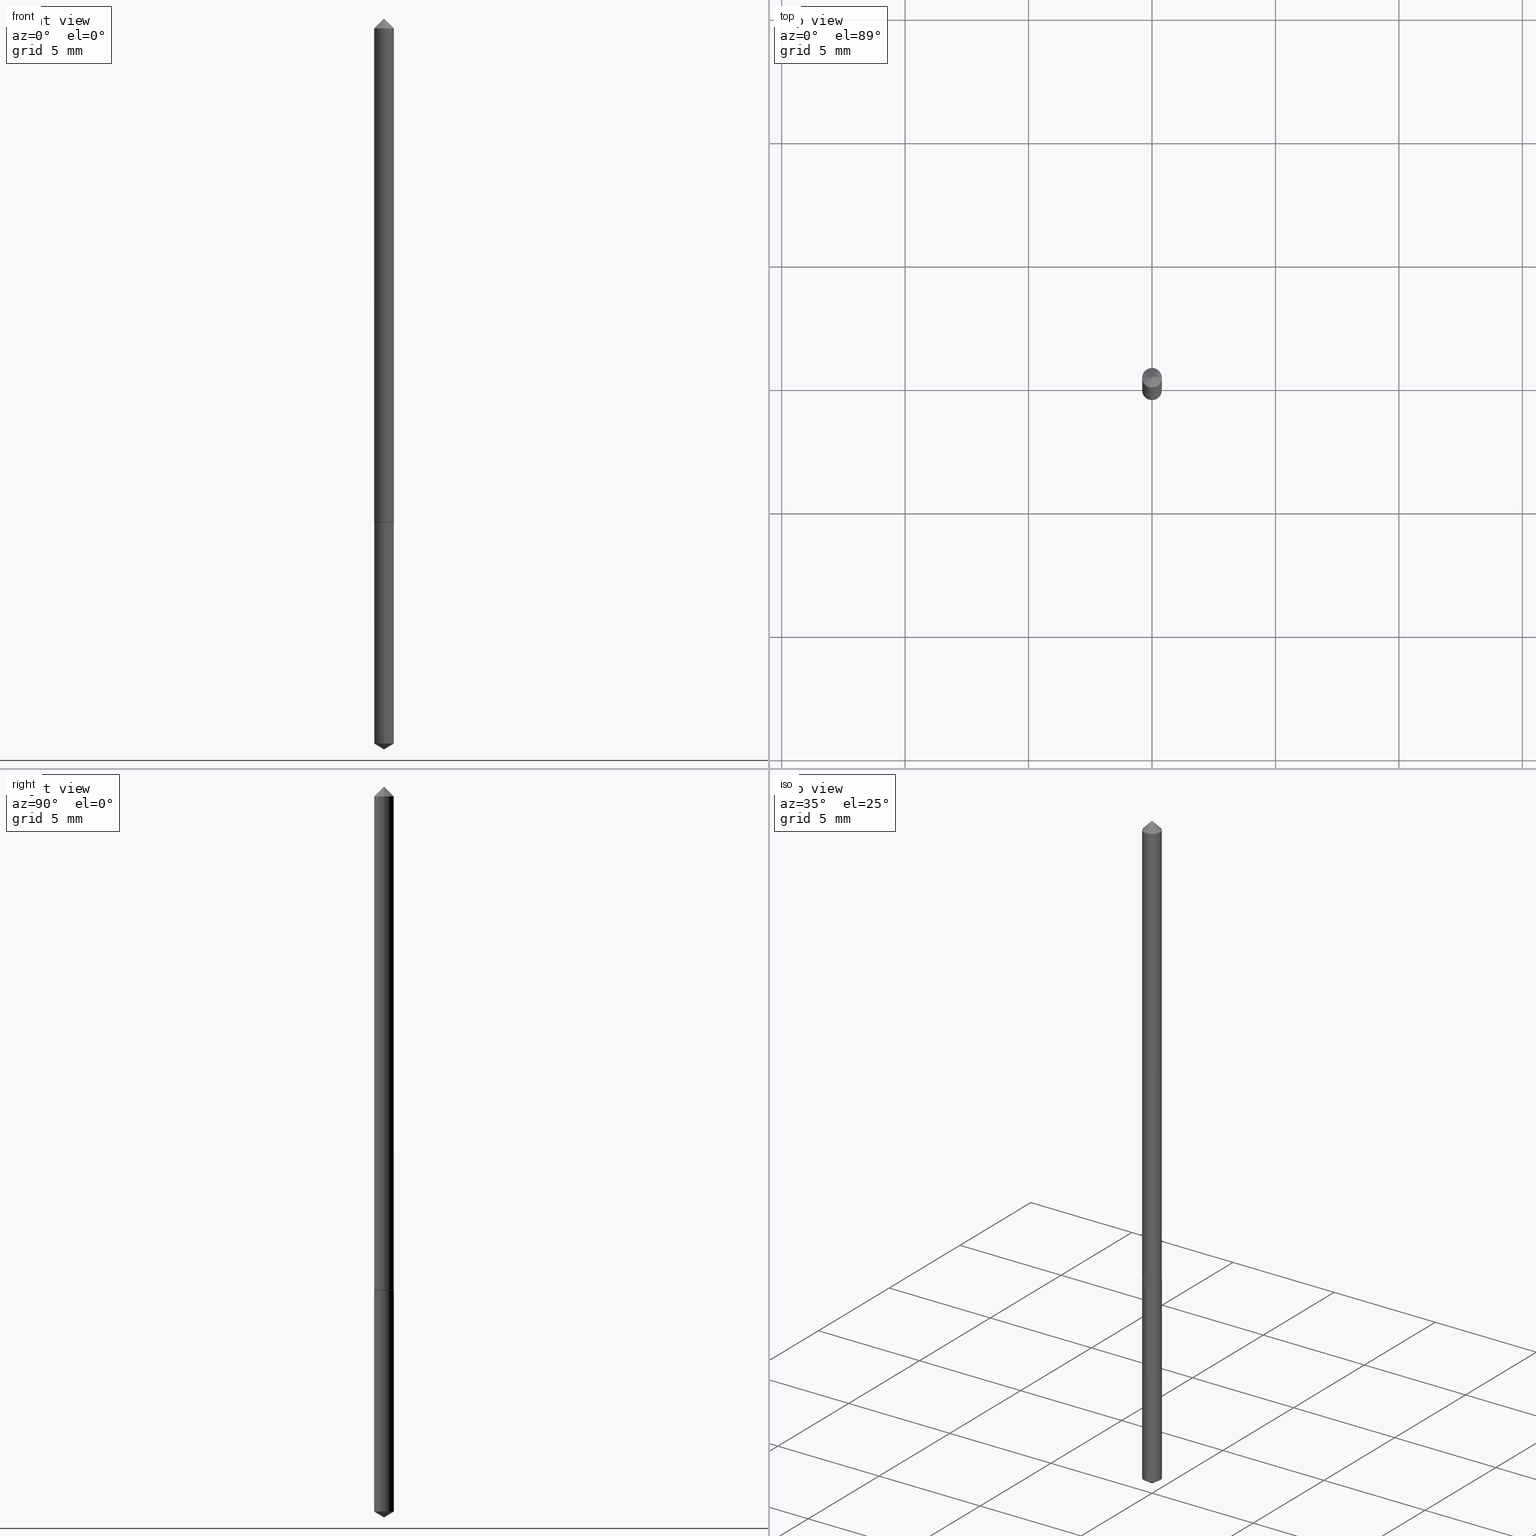
[diagram: canonical four-view strip — front | top / right | iso, engineering-drawing reading convention]
A machine part, canonical four-view strip (front | top / right | iso — engineering-drawing reading convention). The complete STEP part file that produces these views, byte-faithful:
ISO-10303-21;
HEADER;
FILE_DESCRIPTION (( 'STEP AP203' ),
    '1' );
FILE_NAME ('68269.STEP',
    '2024-04-23T12:55:37',
    ( '' ),
    ( '' ),
    'SwSTEP 2.0',
    'SolidWorks 2023',
    '' );
FILE_SCHEMA (( 'CONFIG_CONTROL_DESIGN' ));
ENDSEC;

DATA;
#1 = LOCAL_TIME ( 8, 55, 37.00000000000000000, #184 ) ;
#2 = CARTESIAN_POINT ( 'NONE',  ( 2.002594405385008597E-29, -2.859174068378652141E-15, -0.8189000000000000723 ) ) ;
#3 = EDGE_CURVE ( 'NONE', #90, #74, #286, .T. ) ;
#4 = CARTESIAN_POINT ( 'NONE',  ( 2.002594405385008597E-29, -2.859174068378652141E-15, -0.8189000000000000723 ) ) ;
#5 = CARTESIAN_POINT ( 'NONE',  ( 1.119104808822357974E-16, 0.01574999999999714129, -0.8189000000000000723 ) ) ;
#6 = EDGE_CURVE ( 'NONE', #74, #347, #362, .T. ) ;
#7 = ORIENTED_EDGE ( 'NONE', *, *, #9, .T. ) ;
#8 = DIRECTION ( 'NONE',  ( -1.000000000000000000, 6.982962677686266711E-15, 0.000000000000000000 ) ) ;
#9 = EDGE_CURVE ( 'NONE', #302, #248, #131, .T. ) ;
#10 = ORIENTED_EDGE ( 'NONE', *, *, #153, .T. ) ;
#11 = DIRECTION ( 'NONE',  ( 0.000000000000000000, 0.000000000000000000, 1.000000000000000000 ) ) ;
#12 = FACE_OUTER_BOUND ( 'NONE', #251, .T. ) ;
#13 = DIRECTION ( 'NONE',  ( -2.445460975394057853E-29, 3.491492552981671562E-15, 1.000000000000000000 ) ) ;
#14 = CARTESIAN_POINT ( 'NONE',  ( 7.642090019328600035E-31, -1.091087918388489897E-16, -0.03125000000000020123 ) ) ;
#15 = PERSON ( 'UNSPECIFIED', 'UNSPECIFIED', 'UNSPECIFIED', ('UNSPECIFIED'), ('UNSPECIFIED'), ('UNSPECIFIED') ) ;
#16 = VERTEX_POINT ( 'NONE', #130 ) ;
#17 = PRODUCT ( '68269', '68269', '', ( #40 ) ) ;
#18 = ORIENTED_EDGE ( 'NONE', *, *, #226, .F. ) ;
#19 = CALENDAR_DATE ( 2024, 23, 4 ) ;
#20 = MANIFOLD_SOLID_BREP ( 'Body-Move/Copy2[2]', #71 ) ;
#21 = AXIS2_PLACEMENT_3D ( 'NONE', #172, #169, #82 ) ;
#22 = AXIS2_PLACEMENT_3D ( 'NONE', #14, #354, #150 ) ;
#23 = CALENDAR_DATE ( 2024, 23, 4 ) ;
#24 = PERSON_AND_ORGANIZATION ( #15, #133 ) ;
#25 = ORIENTED_EDGE ( 'NONE', *, *, #266, .T. ) ;
#26 = DATE_AND_TIME ( #53, #181 ) ;
#27 = LINE ( 'NONE', #260, #264 ) ;
#28 = ADVANCED_FACE ( 'NONE', ( #158 ), #245, .T. ) ;
#29 = DIRECTION ( 'NONE',  ( -2.445468806185136597E-29, 3.491481338843145583E-15, 1.000000000000000000 ) ) ;
#30 = EDGE_CURVE ( 'NONE', #89, #347, #324, .T. ) ;
#31 = DIRECTION ( 'NONE',  ( -6.982962677686265922E-15, -1.000000000000000000, 0.000000000000000000 ) ) ;
#32 = ORIENTED_EDGE ( 'NONE', *, *, #197, .T. ) ;
#33 = EDGE_CURVE ( 'NONE', #293, #347, #270, .T. ) ;
#34 = CIRCLE ( 'NONE', #295, 0.01575000000000000011 ) ;
#35 = PLANE ( 'NONE',  #39 ) ;
#36 = CYLINDRICAL_SURFACE ( 'NONE', #83, 0.01575000000000000011 ) ;
#37 = ORIENTED_EDGE ( 'NONE', *, *, #192, .F. ) ;
#38 = CARTESIAN_POINT ( 'NONE',  ( 0.000000000000000000, 0.000000000000000000, 0.000000000000000000 ) ) ;
#39 = AXIS2_PLACEMENT_3D ( 'NONE', #195, #168, #289 ) ;
#40 = MECHANICAL_CONTEXT ( 'NONE', #113, 'mechanical' ) ;
#41 = ORIENTED_EDGE ( 'NONE', *, *, #33, .T. ) ;
#42 = DIRECTION ( 'NONE',  ( -2.445468806185136597E-29, 3.491481338843145583E-15, 1.000000000000000000 ) ) ;
#43 = FACE_OUTER_BOUND ( 'NONE', #185, .T. ) ;
#44 = CARTESIAN_POINT ( 'NONE',  ( -0.01575000000000000358, -1.371358078891821821E-15, -0.03125000000000020123 ) ) ;
#45 = VERTEX_POINT ( 'NONE', #340 ) ;
#46 = CIRCLE ( 'NONE', #21, 0.01575000000000000011 ) ;
#47 = VECTOR ( 'NONE', #180, 39.37007874015748854 ) ;
#48 = COORDINATED_UNIVERSAL_TIME_OFFSET ( 5, 0, .BEHIND. ) ;
#49 = ORIENTED_EDGE ( 'NONE', *, *, #334, .F. ) ;
#50 = SECURITY_CLASSIFICATION_LEVEL ( 'unclassified' ) ;
#51 = VECTOR ( 'NONE', #361, 39.37007874015748143 ) ;
#52 = LOCAL_TIME ( 8, 55, 37.00000000000000000, #338 ) ;
#53 = CALENDAR_DATE ( 2024, 23, 4 ) ;
#54 = APPROVAL_ROLE ( '' ) ;
#55 = CYLINDRICAL_SURFACE ( 'NONE', #240, 0.01575000000000005215 ) ;
#56 = VECTOR ( 'NONE', #215, 39.37007874015748143 ) ;
#57 = CONICAL_SURFACE ( 'NONE', #126, 65.52281426576605838, 1.029744258676638546 ) ;
#58 = DIRECTION ( 'NONE',  ( -2.445460975394057853E-29, 3.491492552981671562E-15, 1.000000000000000000 ) ) ;
#59 = APPROVAL ( #136, 'UNSPECIFIED' ) ;
#60 = FACE_OUTER_BOUND ( 'NONE', #200, .T. ) ;
#61 = ADVANCED_FACE ( 'NONE', ( #309 ), #356, .T. ) ;
#62 = CARTESIAN_POINT ( 'NONE',  ( 2.002594405385008597E-29, -2.859174068378652141E-15, -0.8189000000000000723 ) ) ;
#63 = CARTESIAN_POINT ( 'NONE',  ( -9.338965078657363395E-28, 1.333365440604932687E-13, 38.18897874015748073 ) ) ;
#64 = EDGE_CURVE ( 'NONE', #248, #73, #228, .T. ) ;
#65 = ORIENTED_EDGE ( 'NONE', *, *, #221, .T. ) ;
#66 = ORIENTED_EDGE ( 'NONE', *, *, #64, .T. ) ;
#67 = DIRECTION ( 'NONE',  ( -6.982962677686267499E-15, -1.000000000000000000, 3.468864327941720037E-15 ) ) ;
#68 = ADVANCED_FACE ( 'NONE', ( #346 ), #36, .T. ) ;
#69 = ADVANCED_FACE ( 'NONE', ( #87 ), #55, .T. ) ;
#70 = DIRECTION ( 'NONE',  ( -2.445468806185136597E-29, 3.491481338843145583E-15, 1.000000000000000000 ) ) ;
#71 = CLOSED_SHELL ( 'NONE', ( #110, #322, #310, #230, #61, #69, #274 ) ) ;
#72 = PERSON_AND_ORGANIZATION ( #15, #133 ) ;
#73 = VERTEX_POINT ( 'NONE', #227 ) ;
#74 = VERTEX_POINT ( 'NONE', #85 ) ;
#75 = APPROVAL_STATUS ( 'not_yet_approved' ) ;
#76 = ORIENTED_EDGE ( 'NONE', *, *, #336, .F. ) ;
#77 = PRODUCT_DEFINITION_FORMATION_WITH_SPECIFIED_SOURCE ( 'ANY', '', #17, .NOT_KNOWN. ) ;
#78 = ORIENTED_EDGE ( 'NONE', *, *, #6, .F. ) ;
#79 = CALENDAR_DATE ( 2024, 23, 4 ) ;
#80 = DESIGN_CONTEXT ( 'detailed design', #140, 'design' ) ;
#81 = VERTEX_POINT ( 'NONE', #265 ) ;
#82 = DIRECTION ( 'NONE',  ( -6.982962677686265922E-15, -1.000000000000000000, 0.000000000000000000 ) ) ;
#83 = AXIS2_PLACEMENT_3D ( 'NONE', #138, #58, #31 ) ;
#84 = CIRCLE ( 'NONE', #262, 0.01575000000000000358 ) ;
#85 = CARTESIAN_POINT ( 'NONE',  ( 0.01575000000000009726, -2.967409989882790095E-15, -0.8184000000000001274 ) ) ;
#86 = PLANE ( 'NONE',  #119 ) ;
#87 = FACE_OUTER_BOUND ( 'NONE', #222, .T. ) ;
#88 = AXIS2_PLACEMENT_3D ( 'NONE', #292, #116, #291 ) ;
#89 = VERTEX_POINT ( 'NONE', #261 ) ;
#90 = VERTEX_POINT ( 'NONE', #318 ) ;
#91 = DIRECTION ( 'NONE',  ( -2.445460975394057853E-29, 3.491492552981671562E-15, 1.000000000000000000 ) ) ;
#92 = ORIENTED_EDGE ( 'NONE', *, *, #3, .T. ) ;
#93 = CARTESIAN_POINT ( 'NONE',  ( 2.001371670981915796E-29, -2.857428327709230637E-15, -0.8184000000000001274 ) ) ;
#94 = AXIS2_PLACEMENT_3D ( 'NONE', #224, #42, #122 ) ;
#95 = VECTOR ( 'NONE', #152, 39.37007874015748143 ) ;
#96 = AXIS2_PLACEMENT_3D ( 'NONE', #288, #29, #111 ) ;
#97 =( CONVERSION_BASED_UNIT ( 'INCH', #237 ) LENGTH_UNIT ( ) NAMED_UNIT ( #115 ) );
#98 = PRODUCT_DEFINITION ( 'UNKNOWN', '', #77, #80 ) ;
#99 = ORIENTED_EDGE ( 'NONE', *, *, #298, .F. ) ;
#100 = APPROVAL_ROLE ( '' ) ;
#101 = APPROVAL_PERSON_ORGANIZATION ( #284, #202, #331 ) ;
#102 = CARTESIAN_POINT ( 'NONE',  ( 0.01575000000000005215, -1.099816621735590636E-16, 7.679978421878623957E-31 ) ) ;
#103 = PERSON_AND_ORGANIZATION_ROLE ( 'creator' ) ;
#104 = ORIENTED_EDGE ( 'NONE', *, *, #298, .T. ) ;
#105 = APPLICATION_PROTOCOL_DEFINITION ( 'international standard', 'config_control_design', 1994, #140 ) ;
#106 = ORIENTED_EDGE ( 'NONE', *, *, #3, .F. ) ;
#107 = AXIS2_PLACEMENT_3D ( 'NONE', #187, #254, #358 ) ;
#108 = CARTESIAN_POINT ( 'NONE',  ( 2.888346895770026559E-29, -4.123783487810574430E-15, -1.181100000000000039 ) ) ;
#109 = DIRECTION ( 'NONE',  ( -2.445460975394057853E-29, 3.491492552981671562E-15, 1.000000000000000000 ) ) ;
#110 = ADVANCED_FACE ( 'NONE', ( #145 ), #177, .T. ) ;
#111 = DIRECTION ( 'NONE',  ( 1.000000000000000000, -6.982962677686273810E-15, 0.000000000000000000 ) ) ;
#112 = CONICAL_SURFACE ( 'NONE', #233, 0.01575000000000009726, 0.7853981633974482790 ) ;
#113 = APPLICATION_CONTEXT ( 'configuration controlled 3d designs of mechanical parts and assemblies' ) ;
#114 = DIRECTION ( 'NONE',  ( 2.445460975394057292E-29, -3.491492552981671562E-15, -1.000000000000000000 ) ) ;
#115 = DIMENSIONAL_EXPONENTS ( 1.000000000000000000, 0.000000000000000000, 0.000000000000000000, 0.000000000000000000, 0.000000000000000000, 0.000000000000000000, 0.000000000000000000 ) ;
#116 = DIRECTION ( 'NONE',  ( -2.445468806185136597E-29, 3.491481338843145583E-15, 1.000000000000000000 ) ) ;
#117 = ORIENTED_EDGE ( 'NONE', *, *, #192, .T. ) ;
#118 = DIRECTION ( 'NONE',  ( 1.000000000000000000, -6.982962677686273810E-15, 0.000000000000000000 ) ) ;
#119 = AXIS2_PLACEMENT_3D ( 'NONE', #2, #114, #344 ) ;
#120 = ORIENTED_EDGE ( 'NONE', *, *, #266, .F. ) ;
#121 = DIRECTION ( 'NONE',  ( 1.000000000000000000, 0.000000000000000000, 0.000000000000000000 ) ) ;
#122 = DIRECTION ( 'NONE',  ( 1.000000000000000000, -6.982962677686266711E-15, 0.000000000000000000 ) ) ;
#123 = CARTESIAN_POINT ( 'NONE',  ( -0.01575000000000000358, 8.728703347097300785E-19, -0.03125000000000020123 ) ) ;
#124 = CC_DESIGN_PERSON_AND_ORGANIZATION_ASSIGNMENT ( #214, #304, ( #77 ) ) ;
#125 = CARTESIAN_POINT ( 'NONE',  ( 2.002594405385008597E-29, -2.859174068378652141E-15, -0.8189000000000000723 ) ) ;
#126 = AXIS2_PLACEMENT_3D ( 'NONE', #349, #176, #67 ) ;
#127 = FACE_OUTER_BOUND ( 'NONE', #313, .T. ) ;
#128 = PRODUCT_DEFINITION_SHAPE ( 'NONE', 'NONE',  #98 ) ;
#129 = LINE ( 'NONE', #123, #95 ) ;
#130 = CARTESIAN_POINT ( 'NONE',  ( -1.099816621735300606E-16, -0.01575000000000409406, -1.171636445250315628 ) ) ;
#131 = LINE ( 'NONE', #108, #56 ) ;
#132 = APPROVAL_DATE_TIME ( #26, #317 ) ;
#133 = ORGANIZATION ( 'UNSPECIFIED', 'UNSPECIFIED', '' ) ;
#134 = SHAPE_DEFINITION_REPRESENTATION ( #128, #210 ) ;
#135 = CC_DESIGN_PERSON_AND_ORGANIZATION_ASSIGNMENT ( #307, #359, ( #77 ) ) ;
#136 = APPROVAL_STATUS ( 'not_yet_approved' ) ;
#137 = EDGE_LOOP ( 'NONE', ( #320, #10, #65, #258 ) ) ;
#138 = CARTESIAN_POINT ( 'NONE',  ( 2.002594405385008597E-29, -2.859174068378652141E-15, -0.8189000000000000723 ) ) ;
#139 = EDGE_CURVE ( 'NONE', #174, #45, #350, .T. ) ;
#140 = APPLICATION_CONTEXT ( 'configuration controlled 3d designs of mechanical parts and assemblies' ) ;
#141 = DIRECTION ( 'NONE',  ( -2.445460975394057853E-29, 3.491492552981671562E-15, 1.000000000000000000 ) ) ;
#142 = FACE_OUTER_BOUND ( 'NONE', #282, .T. ) ;
#143 = AXIS2_PLACEMENT_3D ( 'NONE', #315, #166, #8 ) ;
#144 = AXIS2_PLACEMENT_3D ( 'NONE', #351, #273, #275 ) ;
#145 = FACE_OUTER_BOUND ( 'NONE', #190, .T. ) ;
#146 = ORIENTED_EDGE ( 'NONE', *, *, #139, .F. ) ;
#147 = DIRECTION ( 'NONE',  ( 1.000000000000000000, -6.982962677686266711E-15, 4.876176775795935793E-29 ) ) ;
#148 = FACE_OUTER_BOUND ( 'NONE', #203, .T. ) ;
#149 = VECTOR ( 'NONE', #364, 39.37007874015748143 ) ;
#150 = DIRECTION ( 'NONE',  ( -1.000000000000000000, 6.982962677686266711E-15, 0.000000000000000000 ) ) ;
#151 = ADVANCED_FACE ( 'NONE', ( #60 ), #161, .T. ) ;
#152 = DIRECTION ( 'NONE',  ( -0.7071067811865451302, 2.468850131082231817E-15, -0.7071067811865499042 ) ) ;
#153 = EDGE_CURVE ( 'NONE', #248, #16, #46, .T. ) ;
#154 = DIRECTION ( 'NONE',  ( 1.000000000000000000, -6.982962677686273810E-15, 0.000000000000000000 ) ) ;
#155 = DIRECTION ( 'NONE',  ( 1.000000000000000000, -6.982962677686266711E-15, 0.000000000000000000 ) ) ;
#156 = ORIENTED_EDGE ( 'NONE', *, *, #162, .F. ) ;
#157 = PERSON_AND_ORGANIZATION ( #15, #133 ) ;
#158 = FACE_OUTER_BOUND ( 'NONE', #250, .T. ) ;
#159 = DATE_AND_TIME ( #19, #52 ) ;
#160 = ORIENTED_EDGE ( 'NONE', *, *, #285, .T. ) ;
#161 = CONICAL_SURFACE ( 'NONE', #199, 65.52281426576605838, 1.029744258676638546 ) ;
#162 = EDGE_CURVE ( 'NONE', #45, #174, #253, .T. ) ;
#163 = ORIENTED_EDGE ( 'NONE', *, *, #276, .F. ) ;
#164 = DATE_AND_TIME ( #79, #279 ) ;
#165 = CC_DESIGN_PERSON_AND_ORGANIZATION_ASSIGNMENT ( #24, #103, ( #98 ) ) ;
#166 = DIRECTION ( 'NONE',  ( 2.445468806185136597E-29, -3.491481338843145583E-15, -1.000000000000000000 ) ) ;
#167 = DIRECTION ( 'NONE',  ( -2.445460975394057853E-29, 3.491492552981671562E-15, 1.000000000000000000 ) ) ;
#168 = DIRECTION ( 'NONE',  ( -2.438088387897960049E-29, 3.491481338843145188E-15, 1.000000000000000000 ) ) ;
#169 = DIRECTION ( 'NONE',  ( -2.445460975394057853E-29, 3.491492552981671562E-15, 1.000000000000000000 ) ) ;
#170 = VECTOR ( 'NONE', #332, 39.37007874015748143 ) ;
#171 = EDGE_CURVE ( 'NONE', #16, #248, #301, .T. ) ;
#172 = CARTESIAN_POINT ( 'NONE',  ( 2.865197616843877602E-29, -4.090750740135355442E-15, -1.171636445250315628 ) ) ;
#173 = EDGE_LOOP ( 'NONE', ( #49, #330, #117, #106 ) ) ;
#174 = VERTEX_POINT ( 'NONE', #287 ) ;
#175 = DIRECTION ( 'NONE',  ( -2.445468806185136597E-29, 3.491481338843145583E-15, 1.000000000000000000 ) ) ;
#176 = DIRECTION ( 'NONE',  ( -2.445460975394057853E-29, 3.491492552981671562E-15, 1.000000000000000000 ) ) ;
#177 = CONICAL_SURFACE ( 'NONE', #143, 0.01575000000000000358, 0.7853981633974449483 ) ;
#178 = CONICAL_SURFACE ( 'NONE', #22, 0.01575000000000000358, 0.7853981633974449483 ) ;
#179 = ORIENTED_EDGE ( 'NONE', *, *, #336, .T. ) ;
#180 = DIRECTION ( 'NONE',  ( -5.985567269335885270E-15, -0.8571673007021022306, 0.5150380749100706979 ) ) ;
#181 = LOCAL_TIME ( 8, 55, 37.00000000000000000, #333 ) ;
#182 = PERSON_AND_ORGANIZATION ( #15, #133 ) ;
#183 = ORIENTED_EDGE ( 'NONE', *, *, #153, .F. ) ;
#184 = COORDINATED_UNIVERSAL_TIME_OFFSET ( 5, 0, .BEHIND. ) ;
#185 = EDGE_LOOP ( 'NONE', ( #229, #277, #18, #37 ) ) ;
#186 =( GEOMETRIC_REPRESENTATION_CONTEXT ( 3 ) GLOBAL_UNCERTAINTY_ASSIGNED_CONTEXT ( ( #219 ) ) GLOBAL_UNIT_ASSIGNED_CONTEXT ( ( #97, #272, #300 ) ) REPRESENTATION_CONTEXT ( 'NONE', 'WORKASPACE' ) );
#187 = CARTESIAN_POINT ( 'NONE',  ( 2.001371670981915796E-29, -2.857428327709230637E-15, -0.8184000000000001274 ) ) ;
#188 = COORDINATED_UNIVERSAL_TIME_OFFSET ( 5, 0, .BEHIND. ) ;
#189 = CC_DESIGN_DATE_AND_TIME_ASSIGNMENT ( #164, #216, ( #98 ) ) ;
#190 = EDGE_LOOP ( 'NONE', ( #99, #234, #25 ) ) ;
#191 = ORIENTED_EDGE ( 'NONE', *, *, #276, .T. ) ;
#192 = EDGE_CURVE ( 'NONE', #174, #74, #27, .T. ) ;
#193 = LINE ( 'NONE', #263, #342 ) ;
#194 = APPROVAL_PERSON_ORGANIZATION ( #157, #59, #100 ) ;
#195 = CARTESIAN_POINT ( 'NONE',  ( 2.002594405385008597E-29, -2.859174068378652141E-15, -0.8189000000000000723 ) ) ;
#196 = CARTESIAN_POINT ( 'NONE',  ( 1.119104808822444256E-16, 0.01574999999999591310, -1.171636445250315628 ) ) ;
#197 = EDGE_CURVE ( 'NONE', #90, #293, #339, .T. ) ;
#198 = DIRECTION ( 'NONE',  ( -2.445468806185136597E-29, 3.491481338843145583E-15, 1.000000000000000000 ) ) ;
#199 = AXIS2_PLACEMENT_3D ( 'NONE', #63, #141, #223 ) ;
#200 = EDGE_LOOP ( 'NONE', ( #303, #191, #183 ) ) ;
#201 = DIRECTION ( 'NONE',  ( -6.982962677686265922E-15, -1.000000000000000000, 0.000000000000000000 ) ) ;
#202 = APPROVAL ( #75, 'UNSPECIFIED' ) ;
#203 = EDGE_LOOP ( 'NONE', ( #341, #32, #120, #78 ) ) ;
#204 = APPLICATION_PROTOCOL_DEFINITION ( 'international standard', 'config_control_design', 1994, #113 ) ;
#205 = CARTESIAN_POINT ( 'NONE',  ( 0.000000000000000000, 0.000000000000000000, 0.000000000000000000 ) ) ;
#206 = VECTOR ( 'NONE', #109, 39.37007874015748143 ) ;
#207 = SECURITY_CLASSIFICATION ( '', '', #50 ) ;
#208 =( LENGTH_UNIT ( ) NAMED_UNIT ( * ) SI_UNIT ( $, .METRE. ) );
#209 = PRODUCT_RELATED_PRODUCT_CATEGORY ( 'detail', '', ( #17 ) ) ;
#210 = ADVANCED_BREP_SHAPE_REPRESENTATION ( '68269', ( #259, #20, #242 ), #186 ) ;
#211 = DIRECTION ( 'NONE',  ( -2.445468806185136597E-29, 3.491481338843145583E-15, 1.000000000000000000 ) ) ;
#212 = ORIENTED_EDGE ( 'NONE', *, *, #33, .F. ) ;
#213 = APPROVAL_DATE_TIME ( #360, #202 ) ;
#214 = PERSON_AND_ORGANIZATION ( #15, #133 ) ;
#215 = DIRECTION ( 'NONE',  ( 6.090539988449721638E-15, 0.8571673007021058943, 0.5150380749100648137 ) ) ;
#216 = DATE_TIME_ROLE ( 'creation_date' ) ;
#217 = AXIS2_PLACEMENT_3D ( 'NONE', #62, #343, #231 ) ;
#218 = AXIS2_PLACEMENT_3D ( 'NONE', #205, #211, #323 ) ;
#219 = UNCERTAINTY_MEASURE_WITH_UNIT (LENGTH_MEASURE( 1.000000000000000082E-05 ), #97, 'distance_accuracy_value', 'NONE');
#220 = ORIENTED_EDGE ( 'NONE', *, *, #171, .F. ) ;
#221 = EDGE_CURVE ( 'NONE', #16, #81, #193, .T. ) ;
#222 = EDGE_LOOP ( 'NONE', ( #319, #92, #281, #212 ) ) ;
#223 = DIRECTION ( 'NONE',  ( -6.982962677686267499E-15, -1.000000000000000000, 3.468864327941720037E-15 ) ) ;
#224 = CARTESIAN_POINT ( 'NONE',  ( 7.642090019328600035E-31, -1.091087918388489897E-16, -0.03125000000000020123 ) ) ;
#225 = FACE_OUTER_BOUND ( 'NONE', #267, .T. ) ;
#226 = EDGE_CURVE ( 'NONE', #74, #90, #329, .T. ) ;
#227 = CARTESIAN_POINT ( 'NONE',  ( 1.119104808822444749E-16, 0.01574999999999714129, -0.8189000000000000723 ) ) ;
#228 = LINE ( 'NONE', #5, #206 ) ;
#229 = ORIENTED_EDGE ( 'NONE', *, *, #139, .T. ) ;
#230 = ADVANCED_FACE ( 'NONE', ( #225 ), #35, .F. ) ;
#231 = DIRECTION ( 'NONE',  ( 1.000000000000000000, -6.982962677686256455E-15, 0.000000000000000000 ) ) ;
#232 = CLOSED_SHELL ( 'NONE', ( #28, #257, #151, #68, #246 ) ) ;
#233 = AXIS2_PLACEMENT_3D ( 'NONE', #93, #70, #154 ) ;
#234 = ORIENTED_EDGE ( 'NONE', *, *, #30, .T. ) ;
#235 = CARTESIAN_POINT ( 'NONE',  ( 7.642090019328600035E-31, -1.091087918388489897E-16, -0.03125000000000020123 ) ) ;
#236 = ORIENTED_EDGE ( 'NONE', *, *, #30, .F. ) ;
#237 = LENGTH_MEASURE_WITH_UNIT ( LENGTH_MEASURE( 0.02539999999999999897 ), #208 );
#238 = CARTESIAN_POINT ( 'NONE',  ( 0.01575000000000000358, -2.190904540124077205E-16, -0.03125000000000020123 ) ) ;
#239 = DIRECTION ( 'NONE',  ( -6.982962677686265922E-15, -1.000000000000000000, 0.000000000000000000 ) ) ;
#240 = AXIS2_PLACEMENT_3D ( 'NONE', #268, #198, #147 ) ;
#241 = CC_DESIGN_DATE_AND_TIME_ASSIGNMENT ( #159, #278, ( #207 ) ) ;
#242 = AXIS2_PLACEMENT_3D ( 'NONE', #38, #11, #121 ) ;
#243 = DIRECTION ( 'NONE',  ( -6.982962677686265922E-15, -1.000000000000000000, 0.000000000000000000 ) ) ;
#244 = CARTESIAN_POINT ( 'NONE',  ( 2.888333958037921916E-29, -4.123801854326652132E-15, -1.181100000000000039 ) ) ;
#245 = CYLINDRICAL_SURFACE ( 'NONE', #316, 0.01575000000000000011 ) ;
#246 = ADVANCED_FACE ( 'NONE', ( #142 ), #86, .F. ) ;
#247 = APPROVAL_PERSON_ORGANIZATION ( #72, #317, #54 ) ;
#248 = VERTEX_POINT ( 'NONE', #196 ) ;
#249 = PERSON_AND_ORGANIZATION_ROLE ( 'design_owner' ) ;
#250 = EDGE_LOOP ( 'NONE', ( #355, #66, #76, #345 ) ) ;
#251 = EDGE_LOOP ( 'NONE', ( #236, #104, #41 ) ) ;
#252 = APPROVAL_STATUS ( 'not_yet_approved' ) ;
#253 = CIRCLE ( 'NONE', #88, 0.01525000000000006212 ) ;
#254 = DIRECTION ( 'NONE',  ( -2.445468806185136597E-29, 3.491481338843145583E-15, 1.000000000000000000 ) ) ;
#255 = CC_DESIGN_APPROVAL ( #59, ( #77 ) ) ;
#256 = CALENDAR_DATE ( 2024, 23, 4 ) ;
#257 = ADVANCED_FACE ( 'NONE', ( #127 ), #57, .T. ) ;
#258 = ORIENTED_EDGE ( 'NONE', *, *, #285, .F. ) ;
#259 = MANIFOLD_SOLID_BREP ( 'Body-Move/Copy2[1]', #232 ) ;
#260 = CARTESIAN_POINT ( 'NONE',  ( 0.01575000000000009726, -2.967409989882790095E-15, -0.8184000000000001274 ) ) ;
#261 = CARTESIAN_POINT ( 'NONE',  ( 3.753218070327473241E-31, -5.465152481333162299E-17, -0.01550000000000009183 ) ) ;
#262 = AXIS2_PLACEMENT_3D ( 'NONE', #235, #175, #155 ) ;
#263 = CARTESIAN_POINT ( 'NONE',  ( -1.099816621735386641E-16, -0.01575000000000285894, -0.8189000000000000723 ) ) ;
#264 = VECTOR ( 'NONE', #363, 39.37007874015748854 ) ;
#265 = CARTESIAN_POINT ( 'NONE',  ( -1.099816621735386641E-16, -0.01575000000000285894, -0.8189000000000000723 ) ) ;
#266 = EDGE_CURVE ( 'NONE', #347, #293, #84, .T. ) ;
#267 = EDGE_LOOP ( 'NONE', ( #146, #156 ) ) ;
#268 = CARTESIAN_POINT ( 'NONE',  ( 0.000000000000000000, 0.000000000000000000, 0.000000000000000000 ) ) ;
#269 = LINE ( 'NONE', #326, #271 ) ;
#270 = CIRCLE ( 'NONE', #94, 0.01575000000000000358 ) ;
#271 = VECTOR ( 'NONE', #321, 39.37007874015748854 ) ;
#272 =( NAMED_UNIT ( * ) PLANE_ANGLE_UNIT ( ) SI_UNIT ( $, .RADIAN. ) );
#273 = DIRECTION ( 'NONE',  ( -2.445460975394057853E-29, 3.491492552981671562E-15, 1.000000000000000000 ) ) ;
#274 = ADVANCED_FACE ( 'NONE', ( #12 ), #178, .T. ) ;
#275 = DIRECTION ( 'NONE',  ( -6.982962677686265922E-15, -1.000000000000000000, 0.000000000000000000 ) ) ;
#276 = EDGE_CURVE ( 'NONE', #302, #16, #353, .T. ) ;
#277 = ORIENTED_EDGE ( 'NONE', *, *, #334, .T. ) ;
#278 = DATE_TIME_ROLE ( 'classification_date' ) ;
#279 = LOCAL_TIME ( 8, 55, 37.00000000000000000, #188 ) ;
#280 = DATE_AND_TIME ( #23, #1 ) ;
#281 = ORIENTED_EDGE ( 'NONE', *, *, #6, .T. ) ;
#282 = EDGE_LOOP ( 'NONE', ( #179, #160 ) ) ;
#283 = CC_DESIGN_PERSON_AND_ORGANIZATION_ASSIGNMENT ( #328, #249, ( #17 ) ) ;
#284 = PERSON_AND_ORGANIZATION ( #15, #133 ) ;
#285 = EDGE_CURVE ( 'NONE', #73, #81, #34, .T. ) ;
#286 = CIRCLE ( 'NONE', #107, 0.01575000000000009726 ) ;
#287 = CARTESIAN_POINT ( 'NONE',  ( 0.01525000000000006212, -2.965664249213367803E-15, -0.8189000000000000723 ) ) ;
#288 = CARTESIAN_POINT ( 'NONE',  ( 2.001371670981915796E-29, -2.857428327709230637E-15, -0.8184000000000001274 ) ) ;
#289 = DIRECTION ( 'NONE',  ( 1.000000000000000000, -6.982962677686265922E-15, 4.876176775795935793E-29 ) ) ;
#290 = AXIS2_PLACEMENT_3D ( 'NONE', #348, #91, #201 ) ;
#291 = DIRECTION ( 'NONE',  ( 1.000000000000000000, -6.982962677686256455E-15, 0.000000000000000000 ) ) ;
#292 = CARTESIAN_POINT ( 'NONE',  ( 2.002594405385008597E-29, -2.859174068378652141E-15, -0.8189000000000000723 ) ) ;
#293 = VERTEX_POINT ( 'NONE', #44 ) ;
#294 = CYLINDRICAL_SURFACE ( 'NONE', #218, 0.01575000000000005215 ) ;
#295 = AXIS2_PLACEMENT_3D ( 'NONE', #125, #299, #243 ) ;
#296 = CARTESIAN_POINT ( 'NONE',  ( 2.888333958037921916E-29, -4.123801854326652132E-15, -1.181100000000000039 ) ) ;
#297 = CARTESIAN_POINT ( 'NONE',  ( 0.01575000000000000358, -2.171616353037506589E-16, -0.03125000000000020123 ) ) ;
#298 = EDGE_CURVE ( 'NONE', #89, #293, #129, .T. ) ;
#299 = DIRECTION ( 'NONE',  ( -2.445460975394057853E-29, 3.491492552981671562E-15, 1.000000000000000000 ) ) ;
#300 =( NAMED_UNIT ( * ) SI_UNIT ( $, .STERADIAN. ) SOLID_ANGLE_UNIT ( ) );
#301 = CIRCLE ( 'NONE', #290, 0.01575000000000000011 ) ;
#302 = VERTEX_POINT ( 'NONE', #296 ) ;
#303 = ORIENTED_EDGE ( 'NONE', *, *, #9, .F. ) ;
#304 = PERSON_AND_ORGANIZATION_ROLE ( 'design_supplier' ) ;
#305 = APPROVAL_DATE_TIME ( #280, #59 ) ;
#306 = CIRCLE ( 'NONE', #144, 0.01575000000000000011 ) ;
#307 = PERSON_AND_ORGANIZATION ( #15, #133 ) ;
#308 = PERSON_AND_ORGANIZATION_ROLE ( 'classification_officer' ) ;
#309 = FACE_OUTER_BOUND ( 'NONE', #173, .T. ) ;
#310 = ADVANCED_FACE ( 'NONE', ( #43 ), #112, .T. ) ;
#311 = LOCAL_TIME ( 8, 55, 37.00000000000000000, #48 ) ;
#312 = DIRECTION ( 'NONE',  ( -2.445468806185136597E-29, 3.491481338843145583E-15, 1.000000000000000000 ) ) ;
#313 = EDGE_LOOP ( 'NONE', ( #163, #7, #220 ) ) ;
#314 = CARTESIAN_POINT ( 'NONE',  ( -0.01575000000000005215, 1.119104808822161498E-16, -7.747322767151501157E-31 ) ) ;
#315 = CARTESIAN_POINT ( 'NONE',  ( 7.642090019328600035E-31, -1.091087918388489897E-16, -0.03125000000000020123 ) ) ;
#316 = AXIS2_PLACEMENT_3D ( 'NONE', #4, #13, #239 ) ;
#317 = APPROVAL ( #252, 'UNSPECIFIED' ) ;
#318 = CARTESIAN_POINT ( 'NONE',  ( -0.01575000000000009726, -2.745517846827014167E-15, -0.8184000000000001274 ) ) ;
#319 = ORIENTED_EDGE ( 'NONE', *, *, #197, .F. ) ;
#320 = ORIENTED_EDGE ( 'NONE', *, *, #64, .F. ) ;
#321 = DIRECTION ( 'NONE',  ( -0.7071067811865474617, 7.493145998870352582E-15, 0.7071067811865474617 ) ) ;
#322 = ADVANCED_FACE ( 'NONE', ( #148 ), #294, .T. ) ;
#323 = DIRECTION ( 'NONE',  ( 1.000000000000000000, -6.982962677686266711E-15, 4.876176775795935793E-29 ) ) ;
#324 = LINE ( 'NONE', #297, #51 ) ;
#325 = AXIS2_PLACEMENT_3D ( 'NONE', #335, #312, #118 ) ;
#326 = CARTESIAN_POINT ( 'NONE',  ( -0.01575000000000009726, -2.745517846827014167E-15, -0.8184000000000001274 ) ) ;
#327 = CC_DESIGN_PERSON_AND_ORGANIZATION_ASSIGNMENT ( #182, #308, ( #207 ) ) ;
#328 = PERSON_AND_ORGANIZATION ( #15, #133 ) ;
#329 = CIRCLE ( 'NONE', #96, 0.01575000000000009726 ) ;
#330 = ORIENTED_EDGE ( 'NONE', *, *, #162, .T. ) ;
#331 = APPROVAL_ROLE ( '' ) ;
#332 = DIRECTION ( 'NONE',  ( -2.445468806185136877E-29, 3.491481338843145188E-15, 1.000000000000000000 ) ) ;
#333 = COORDINATED_UNIVERSAL_TIME_OFFSET ( 5, 0, .BEHIND. ) ;
#334 = EDGE_CURVE ( 'NONE', #45, #90, #269, .T. ) ;
#335 = CARTESIAN_POINT ( 'NONE',  ( 2.001371670981915796E-29, -2.857428327709230637E-15, -0.8184000000000001274 ) ) ;
#336 = EDGE_CURVE ( 'NONE', #81, #73, #306, .T. ) ;
#337 = CC_DESIGN_SECURITY_CLASSIFICATION ( #207, ( #77 ) ) ;
#338 = COORDINATED_UNIVERSAL_TIME_OFFSET ( 5, 0, .BEHIND. ) ;
#339 = LINE ( 'NONE', #314, #149 ) ;
#340 = CARTESIAN_POINT ( 'NONE',  ( -0.01525000000000006212, -2.748167074001125762E-15, -0.8189000000000000723 ) ) ;
#341 = ORIENTED_EDGE ( 'NONE', *, *, #226, .T. ) ;
#342 = VECTOR ( 'NONE', #167, 39.37007874015748143 ) ;
#343 = DIRECTION ( 'NONE',  ( -2.445468806185136597E-29, 3.491481338843145583E-15, 1.000000000000000000 ) ) ;
#344 = DIRECTION ( 'NONE',  ( 6.982962677686265922E-15, 1.000000000000000000, -3.491492552981671562E-15 ) ) ;
#345 = ORIENTED_EDGE ( 'NONE', *, *, #221, .F. ) ;
#346 = FACE_OUTER_BOUND ( 'NONE', #137, .T. ) ;
#347 = VERTEX_POINT ( 'NONE', #238 ) ;
#348 = CARTESIAN_POINT ( 'NONE',  ( 2.865197616843877602E-29, -4.090750740135355442E-15, -1.171636445250315628 ) ) ;
#349 = CARTESIAN_POINT ( 'NONE',  ( -9.338965078657363395E-28, 1.333365440604932687E-13, 38.18897874015748073 ) ) ;
#350 = CIRCLE ( 'NONE', #217, 0.01525000000000006212 ) ;
#351 = CARTESIAN_POINT ( 'NONE',  ( 2.002594405385008597E-29, -2.859174068378652141E-15, -0.8189000000000000723 ) ) ;
#352 = CC_DESIGN_APPROVAL ( #317, ( #207 ) ) ;
#353 = LINE ( 'NONE', #244, #47 ) ;
#354 = DIRECTION ( 'NONE',  ( 2.445468806185136597E-29, -3.491481338843145583E-15, -1.000000000000000000 ) ) ;
#355 = ORIENTED_EDGE ( 'NONE', *, *, #171, .T. ) ;
#356 = CONICAL_SURFACE ( 'NONE', #325, 0.01575000000000009726, 0.7853981633974482790 ) ;
#357 = CC_DESIGN_APPROVAL ( #202, ( #98 ) ) ;
#358 = DIRECTION ( 'NONE',  ( 1.000000000000000000, -6.982962677686273810E-15, 0.000000000000000000 ) ) ;
#359 = PERSON_AND_ORGANIZATION_ROLE ( 'creator' ) ;
#360 = DATE_AND_TIME ( #256, #311 ) ;
#361 = DIRECTION ( 'NONE',  ( 0.7071067811865451302, -7.319954787623248157E-15, -0.7071067811865499042 ) ) ;
#362 = LINE ( 'NONE', #102, #170 ) ;
#363 = DIRECTION ( 'NONE',  ( 0.7071067811865474617, -2.468850131082256666E-15, 0.7071067811865474617 ) ) ;
#364 = DIRECTION ( 'NONE',  ( -2.445468806185136877E-29, 3.491481338843145188E-15, 1.000000000000000000 ) ) ;
ENDSEC;
END-ISO-10303-21;
